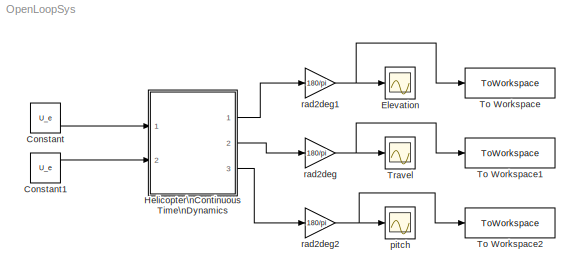
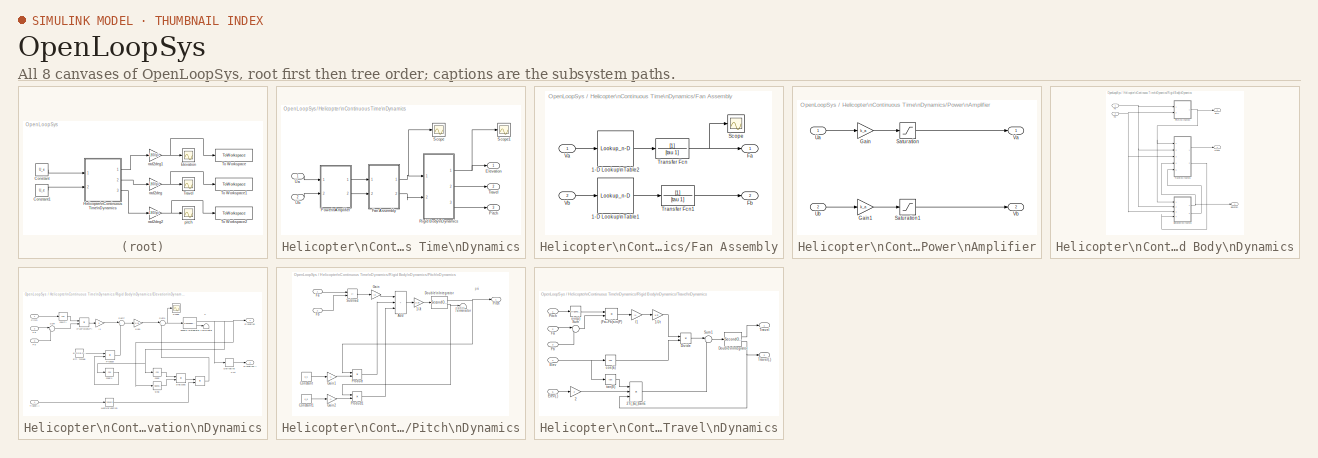
[diagram: thumbnail index - all 8 canvases of the model, root first then tree order]
MODEL OpenLoopSys
KIND model
BLOCK [Constant] Constant
  SID = 283
  SampleTime = 0
  Value = U_e
BLOCK [Constant] Constant1
  SID = 284
  SampleTime = 0
  Value = U_e
BLOCK [Scope] Elevation
  Floating = off
  NumInputPorts = 1
  Ports = [1]
  SID = 1
  ScopeSpecificationString = Simulink.scopes.TimeScopeBlockCfg('CurrentConfiguration', extmgr.ConfigurationSet(extmgr.Configuration('Core','General UI',true),extmgr.Configuration('Core','Source UI',true),extmgr.Configuration('Sources','WiredSimulink',true,'DataLogging',true,'DataLoggingVariableName','elev','DataLoggingSaveFormat','StructureWithTime','DataLoggingDecimation','1','DataLoggingDecimateData',true),extmgr.Configurat...<+1684ch>
BLOCK [SubSystem] Helicopter\nContinuous Time\nDynamics
  Ports = [2, 3]
  RequestExecContextInheritance = off
  SID = 2
BLOCK [Outport] Helicopter\nContinuous Time\nDynamics/Elevation
  NameLocation = top
  SID = 81
BLOCK [SubSystem] Helicopter\nContinuous Time\nDynamics/Fan Assembly
  Ports = [2, 2]
  RequestExecContextInheritance = off
  SID = 5
BLOCK [Lookup_n-D] Helicopter\nContinuous Time\nDynamics/Fan Assembly/1-D Lookup\nTable1
  BreakpointsForDimension1 = V_ab
  InputPortMap = u0
  InternalRulePriority = Speed
  NumberOfTableDimensions = 1
  Ports = [1, 1]
  RndMeth = Simplest
  SID = 295
  Table = Fss_ab
BLOCK [Lookup_n-D] Helicopter\nContinuous Time\nDynamics/Fan Assembly/1-D Lookup\nTable2
  BreakpointsForDimension1 = V_ab
  InputPortMap = u0
  InternalRulePriority = Speed
  NumberOfTableDimensions = 1
  Ports = [1, 1]
  RndMeth = Simplest
  SID = 298
  Table = Fss_ab
BLOCK [Outport] Helicopter\nContinuous Time\nDynamics/Fan Assembly/Fa
  SID = 12
BLOCK [Outport] Helicopter\nContinuous Time\nDynamics/Fan Assembly/Fb
  Port = 2
  SID = 13
BLOCK [Scope] Helicopter\nContinuous Time\nDynamics/Fan Assembly/Scope
  Floating = off
  NumInputPorts = 1
  Ports = [1]
  SID = 310
  ScopeSpecificationString = Simulink.scopes.TimeScopeBlockCfg('CurrentConfiguration', extmgr.ConfigurationSet(extmgr.Configuration('Core','General UI',true),extmgr.Configuration('Core','Source UI',true),extmgr.Configuration('Sources','WiredSimulink',true,'DataLoggingVariableName','ScopeData1'),extmgr.Configuration('Visuals','Time Domain',true,'SerializedDisplays',{struct('MinYLimReal','-0.00044','MaxYLimReal','0.00396','YLab...<+1371ch>
BLOCK [TransferFcn] Helicopter\nContinuous Time\nDynamics/Fan Assembly/Transfer Fcn
  Denominator = [tau 1]
  SID = 307
BLOCK [TransferFcn] Helicopter\nContinuous Time\nDynamics/Fan Assembly/Transfer Fcn1
  Denominator = [tau 1]
  SID = 308
BLOCK [Inport] Helicopter\nContinuous Time\nDynamics/Fan Assembly/Va
  SID = 6
BLOCK [Inport] Helicopter\nContinuous Time\nDynamics/Fan Assembly/Vb
  Port = 2
  SID = 7
BLOCK [Outport] Helicopter\nContinuous Time\nDynamics/Pitch
  Port = 3
  SID = 83
BLOCK [SubSystem] Helicopter\nContinuous Time\nDynamics/Power\nAmplifier
  Ports = [2, 2]
  RequestExecContextInheritance = off
  SID = 14
BLOCK [Gain] Helicopter\nContinuous Time\nDynamics/Power\nAmplifier/Gain
  Gain = k_a
  SID = 246
BLOCK [Gain] Helicopter\nContinuous Time\nDynamics/Power\nAmplifier/Gain1
  Gain = k_a
  SID = 248
BLOCK [Saturate] Helicopter\nContinuous Time\nDynamics/Power\nAmplifier/Saturation
  LowerLimit = amp_sat_l
  SID = 247
  UpperLimit = amp_sat_u
BLOCK [Saturate] Helicopter\nContinuous Time\nDynamics/Power\nAmplifier/Saturation1
  LowerLimit = amp_sat_l
  SID = 249
  UpperLimit = amp_sat_u
BLOCK [Inport] Helicopter\nContinuous Time\nDynamics/Power\nAmplifier/Ua
  SID = 15
BLOCK [Inport] Helicopter\nContinuous Time\nDynamics/Power\nAmplifier/Ub
  Port = 2
  SID = 16
BLOCK [Outport] Helicopter\nContinuous Time\nDynamics/Power\nAmplifier/Va
  SID = 21
BLOCK [Outport] Helicopter\nContinuous Time\nDynamics/Power\nAmplifier/Vb
  Port = 2
  SID = 22
BLOCK [SubSystem] Helicopter\nContinuous Time\nDynamics/Rigid Body\nDynamics
  Ports = [2, 3]
  RequestExecContextInheritance = off
  SID = 178
BLOCK [Outport] Helicopter\nContinuous Time\nDynamics/Rigid Body\nDynamics/Elevation
  NameLocation = top
  SID = 237
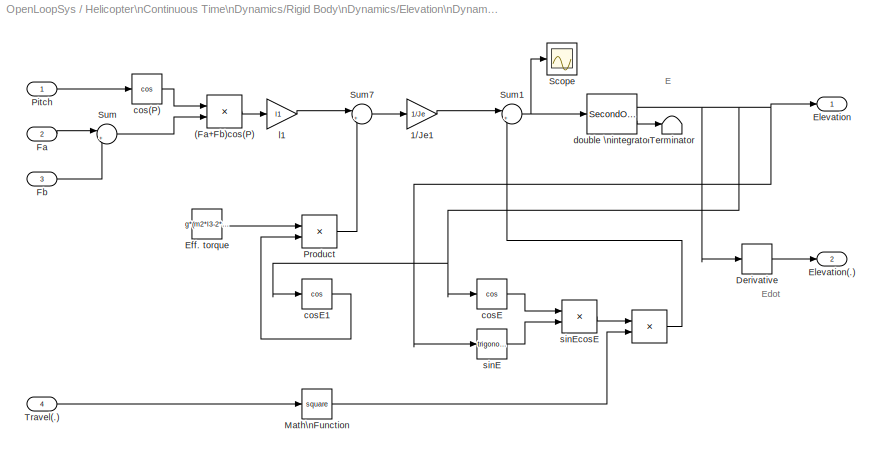
BLOCK [SubSystem] Helicopter\nContinuous Time\nDynamics/Rigid Body\nDynamics/Elevation\nDynamics
  Ports = [4, 2]
  RequestExecContextInheritance = off
  SID = 181
BLOCK [Product] Helicopter\nContinuous Time\nDynamics/Rigid Body\nDynamics/Elevation\nDynamics/ 
  InputSameDT = on
  OutDataTypeStr = Inherit: Same as first input
  Ports = [2, 1]
  RndMeth = Zero
  SID = 186
  SaturateOnIntegerOverflow = on
BLOCK [Product] Helicopter\nContinuous Time\nDynamics/Rigid Body\nDynamics/Elevation\nDynamics/(Fa+Fb)cos(P)
  InputSameDT = on
  OutDataTypeStr = Inherit: Same as first input
  Ports = [2, 1]
  RndMeth = Zero
  SID = 187
  SaturateOnIntegerOverflow = on
BLOCK [Gain] Helicopter\nContinuous Time\nDynamics/Rigid Body\nDynamics/Elevation\nDynamics/1//Je1
  Gain = 1/Je
  OutDataTypeStr = Inherit: Same as input
  ParamDataTypeStr = Inherit: Same as input
  SID = 299
  SaturateOnIntegerOverflow = on
BLOCK [Derivative] Helicopter\nContinuous Time\nDynamics/Rigid Body\nDynamics/Elevation\nDynamics/Derivative
  SID = 189
BLOCK [Constant] Helicopter\nContinuous Time\nDynamics/Rigid Body\nDynamics/Elevation\nDynamics/Eff. torque
  SID = 190
  SampleTime = 0
  Value = g*(m2*l3-2*m1*l1)
BLOCK [Outport] Helicopter\nContinuous Time\nDynamics/Rigid Body\nDynamics/Elevation\nDynamics/Elevation
  SID = 203
BLOCK [Outport] Helicopter\nContinuous Time\nDynamics/Rigid Body\nDynamics/Elevation\nDynamics/Elevation(.)
  Port = 2
  SID = 204
BLOCK [Inport] Helicopter\nContinuous Time\nDynamics/Rigid Body\nDynamics/Elevation\nDynamics/Fa
  Port = 2
  SID = 183
BLOCK [Inport] Helicopter\nContinuous Time\nDynamics/Rigid Body\nDynamics/Elevation\nDynamics/Fb
  Port = 3
  SID = 184
BLOCK [Math] Helicopter\nContinuous Time\nDynamics/Rigid Body\nDynamics/Elevation\nDynamics/Math\nFunction
  Operator = square
  Ports = [1, 1]
  SID = 191
  SignedPower = on
BLOCK [Inport] Helicopter\nContinuous Time\nDynamics/Rigid Body\nDynamics/Elevation\nDynamics/Pitch
  SID = 182
BLOCK [Product] Helicopter\nContinuous Time\nDynamics/Rigid Body\nDynamics/Elevation\nDynamics/Product
  InputSameDT = on
  OutDataTypeStr = Inherit: Same as first input
  Ports = [2, 1]
  RndMeth = Zero
  SID = 192
  SaturateOnIntegerOverflow = on
BLOCK [Scope] Helicopter\nContinuous Time\nDynamics/Rigid Body\nDynamics/Elevation\nDynamics/Scope
  Floating = off
  NumInputPorts = 1
  Ports = [1]
  SID = 302
  ScopeSpecificationString = Simulink.scopes.TimeScopeBlockCfg('CurrentConfiguration', extmgr.ConfigurationSet(extmgr.Configuration('Core','General UI',true),extmgr.Configuration('Core','Source UI',true),extmgr.Configuration('Sources','WiredSimulink',true,'DataLoggingVariableName','ScopeData2'),extmgr.Configuration('Visuals','Time Domain',true,'SerializedDisplays',{struct('MinYLimReal','-0.8852','MaxYLimReal','-0.21737','YLab...<+1390ch>
BLOCK [Sum] Helicopter\nContinuous Time\nDynamics/Rigid Body\nDynamics/Elevation\nDynamics/Sum
  InputSameDT = on
  Inputs = |++
  OutDataTypeStr = Inherit: Same as first input
  Ports = [2, 1]
  SID = 193
  SaturateOnIntegerOverflow = on
BLOCK [Sum] Helicopter\nContinuous Time\nDynamics/Rigid Body\nDynamics/Elevation\nDynamics/Sum1
  InputSameDT = on
  Inputs = |+-
  OutDataTypeStr = Inherit: Same as first input
  Ports = [2, 1]
  SID = 194
  SaturateOnIntegerOverflow = on
BLOCK [Sum] Helicopter\nContinuous Time\nDynamics/Rigid Body\nDynamics/Elevation\nDynamics/Sum7
  InputSameDT = on
  Inputs = |++
  OutDataTypeStr = Inherit: Same as first input
  Ports = [2, 1]
  SID = 195
  SaturateOnIntegerOverflow = on
BLOCK [Terminator] Helicopter\nContinuous Time\nDynamics/Rigid Body\nDynamics/Elevation\nDynamics/Terminator
  SID = 196
BLOCK [Inport] Helicopter\nContinuous Time\nDynamics/Rigid Body\nDynamics/Elevation\nDynamics/Travel(.)
  Port = 4
  SID = 185
BLOCK [Trigonometry] Helicopter\nContinuous Time\nDynamics/Rigid Body\nDynamics/Elevation\nDynamics/cos(P)
  Operator = cos
  Ports = [1, 1]
  SID = 197
BLOCK [Trigonometry] Helicopter\nContinuous Time\nDynamics/Rigid Body\nDynamics/Elevation\nDynamics/cosE
  Operator = cos
  Ports = [1, 1]
  SID = 198
BLOCK [Trigonometry] Helicopter\nContinuous Time\nDynamics/Rigid Body\nDynamics/Elevation\nDynamics/cosE1
  Operator = cos
  Ports = [1, 1]
  SID = 282
BLOCK [SecondOrderIntegrator] Helicopter\nContinuous Time\nDynamics/Rigid Body\nDynamics/Elevation\nDynamics/double \nintegrator
  ICX = e_lim_l
  LimitDXDT = on
  LimitX = on
  LowerLimitDXDT = -2*pi
  LowerLimitX = e_lim_l
  Ports = [1, 2]
  SID = 199
  UpperLimitDXDT = 2*pi
  UpperLimitX = e_lim_u
BLOCK [Gain] Helicopter\nContinuous Time\nDynamics/Rigid Body\nDynamics/Elevation\nDynamics/l1
  Gain = l1
  OutDataTypeStr = Inherit: Same as input
  ParamDataTypeStr = Inherit: Same as input
  SID = 200
  SaturateOnIntegerOverflow = on
BLOCK [Trigonometry] Helicopter\nContinuous Time\nDynamics/Rigid Body\nDynamics/Elevation\nDynamics/sinE
  Ports = [1, 1]
  SID = 201
BLOCK [Product] Helicopter\nContinuous Time\nDynamics/Rigid Body\nDynamics/Elevation\nDynamics/sinEcosE
  InputSameDT = on
  OutDataTypeStr = Inherit: Same as first input
  Ports = [2, 1]
  RndMeth = Zero
  SID = 202
  SaturateOnIntegerOverflow = on
BLOCK [Inport] Helicopter\nContinuous Time\nDynamics/Rigid Body\nDynamics/Fa
  SID = 179
BLOCK [Inport] Helicopter\nContinuous Time\nDynamics/Rigid Body\nDynamics/Fb
  Port = 2
  SID = 180
BLOCK [Outport] Helicopter\nContinuous Time\nDynamics/Rigid Body\nDynamics/Pitch
  Port = 3
  SID = 239
BLOCK [SubSystem] Helicopter\nContinuous Time\nDynamics/Rigid Body\nDynamics/Pitch\nDynamics
  Ports = [2, 1]
  RequestExecContextInheritance = off
  SID = 261
BLOCK [Gain] Helicopter\nContinuous Time\nDynamics/Rigid Body\nDynamics/Pitch\nDynamics/1//Jt
  Gain = 1/Jp
  OutDataTypeStr = Inherit: Same as input
  ParamDataTypeStr = Inherit: Same as input
  SID = 305
  SaturateOnIntegerOverflow = on
BLOCK [Sum] Helicopter\nContinuous Time\nDynamics/Rigid Body\nDynamics/Pitch\nDynamics/Add
  IconShape = rectangular
  Inputs = +++
  Ports = [3, 1]
  SID = 264
BLOCK [Constant] Helicopter\nContinuous Time\nDynamics/Rigid Body\nDynamics/Pitch\nDynamics/Constant
  SID = 265
  SampleTime = 0
  Value = k_s
BLOCK [Constant] Helicopter\nContinuous Time\nDynamics/Rigid Body\nDynamics/Pitch\nDynamics/Constant1
  SID = 266
  SampleTime = 0
  Value = k_d
BLOCK [SecondOrderIntegrator] Helicopter\nContinuous Time\nDynamics/Rigid Body\nDynamics/Pitch\nDynamics/Double\nIntegrator
  ICX = 0
  LimitX = on
  LowerLimitX = p_lim_l
  Ports = [1, 2]
  SID = 267
  UpperLimitX = p_lim_u
BLOCK [Inport] Helicopter\nContinuous Time\nDynamics/Rigid Body\nDynamics/Pitch\nDynamics/Fa
  SID = 262
BLOCK [Inport] Helicopter\nContinuous Time\nDynamics/Rigid Body\nDynamics/Pitch\nDynamics/Fb
  Port = 2
  SID = 263
BLOCK [Gain] Helicopter\nContinuous Time\nDynamics/Rigid Body\nDynamics/Pitch\nDynamics/Gain
  Gain = l2
  SID = 268
BLOCK [Gain] Helicopter\nContinuous Time\nDynamics/Rigid Body\nDynamics/Pitch\nDynamics/Gain1
  Gain = -1
  SID = 269
BLOCK [Gain] Helicopter\nContinuous Time\nDynamics/Rigid Body\nDynamics/Pitch\nDynamics/Gain2
  Gain = -1
  SID = 270
BLOCK [Outport] Helicopter\nContinuous Time\nDynamics/Rigid Body\nDynamics/Pitch\nDynamics/Pitch
  SID = 275
BLOCK [Product] Helicopter\nContinuous Time\nDynamics/Rigid Body\nDynamics/Pitch\nDynamics/Product
  Ports = [2, 1]
  SID = 271
BLOCK [Product] Helicopter\nContinuous Time\nDynamics/Rigid Body\nDynamics/Pitch\nDynamics/Product1
  Ports = [2, 1]
  SID = 272
BLOCK [Sum] Helicopter\nContinuous Time\nDynamics/Rigid Body\nDynamics/Pitch\nDynamics/Subtract
  IconShape = rectangular
  Inputs = +-
  Ports = [2, 1]
  SID = 273
BLOCK [Terminator] Helicopter\nContinuous Time\nDynamics/Rigid Body\nDynamics/Pitch\nDynamics/Terminator
  SID = 274
BLOCK [Outport] Helicopter\nContinuous Time\nDynamics/Rigid Body\nDynamics/Travel
  Port = 2
  SID = 238
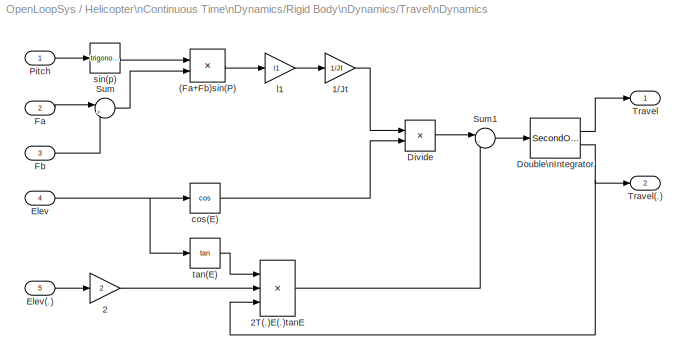
BLOCK [SubSystem] Helicopter\nContinuous Time\nDynamics/Rigid Body\nDynamics/Travel\nDynamics
  Ports = [5, 2]
  RequestExecContextInheritance = off
  SID = 217
BLOCK [Product] Helicopter\nContinuous Time\nDynamics/Rigid Body\nDynamics/Travel\nDynamics/(Fa+Fb)sin(P)
  InputSameDT = on
  OutDataTypeStr = Inherit: Same as first input
  Ports = [2, 1]
  RndMeth = Zero
  SID = 223
  SaturateOnIntegerOverflow = on
BLOCK [Gain] Helicopter\nContinuous Time\nDynamics/Rigid Body\nDynamics/Travel\nDynamics/1//Jt
  Gain = 1/Jt
  OutDataTypeStr = Inherit: Same as input
  ParamDataTypeStr = Inherit: Same as input
  SID = 224
  SaturateOnIntegerOverflow = on
BLOCK [Gain] Helicopter\nContinuous Time\nDynamics/Rigid Body\nDynamics/Travel\nDynamics/2
  Gain = 2
  OutDataTypeStr = Inherit: Same as input
  ParamDataTypeStr = Inherit: Same as input
  SID = 225
  SaturateOnIntegerOverflow = on
BLOCK [Product] Helicopter\nContinuous Time\nDynamics/Rigid Body\nDynamics/Travel\nDynamics/2T(.)E(.)tanE
  InputSameDT = on
  Inputs = 3
  OutDataTypeStr = Inherit: Same as first input
  Ports = [3, 1]
  RndMeth = Zero
  SID = 226
  SaturateOnIntegerOverflow = on
BLOCK [Product] Helicopter\nContinuous Time\nDynamics/Rigid Body\nDynamics/Travel\nDynamics/Divide
  Inputs = */
  Ports = [2, 1]
  SID = 227
BLOCK [SecondOrderIntegrator] Helicopter\nContinuous Time\nDynamics/Rigid Body\nDynamics/Travel\nDynamics/Double\nIntegrator
  LimitDXDT = on
  LowerLimitDXDT = -2
  LowerLimitX = 0
  Ports = [1, 2]
  SID = 228
  UpperLimitDXDT = 2
  UpperLimitX = 1
BLOCK [Inport] Helicopter\nContinuous Time\nDynamics/Rigid Body\nDynamics/Travel\nDynamics/Elev
  Port = 4
  SID = 221
BLOCK [Inport] Helicopter\nContinuous Time\nDynamics/Rigid Body\nDynamics/Travel\nDynamics/Elev(.)
  Port = 5
  SID = 222
BLOCK [Inport] Helicopter\nContinuous Time\nDynamics/Rigid Body\nDynamics/Travel\nDynamics/Fa
  Port = 2
  SID = 219
BLOCK [Inport] Helicopter\nContinuous Time\nDynamics/Rigid Body\nDynamics/Travel\nDynamics/Fb
  Port = 3
  SID = 220
BLOCK [Inport] Helicopter\nContinuous Time\nDynamics/Rigid Body\nDynamics/Travel\nDynamics/Pitch
  SID = 218
BLOCK [Sum] Helicopter\nContinuous Time\nDynamics/Rigid Body\nDynamics/Travel\nDynamics/Sum
  InputSameDT = on
  Inputs = |++
  OutDataTypeStr = Inherit: Same as first input
  Ports = [2, 1]
  SID = 229
  SaturateOnIntegerOverflow = on
BLOCK [Sum] Helicopter\nContinuous Time\nDynamics/Rigid Body\nDynamics/Travel\nDynamics/Sum1
  InputSameDT = on
  Inputs = |-+
  OutDataTypeStr = Inherit: Same as first input
  Ports = [2, 1]
  SID = 230
  SaturateOnIntegerOverflow = on
BLOCK [Outport] Helicopter\nContinuous Time\nDynamics/Rigid Body\nDynamics/Travel\nDynamics/Travel
  SID = 235
BLOCK [Outport] Helicopter\nContinuous Time\nDynamics/Rigid Body\nDynamics/Travel\nDynamics/Travel(.)
  Port = 2
  SID = 236
BLOCK [Trigonometry] Helicopter\nContinuous Time\nDynamics/Rigid Body\nDynamics/Travel\nDynamics/cos(E)
  Operator = cos
  Ports = [1, 1]
  SID = 231
BLOCK [Gain] Helicopter\nContinuous Time\nDynamics/Rigid Body\nDynamics/Travel\nDynamics/l1
  Gain = l1
  OutDataTypeStr = Inherit: Same as input
  ParamDataTypeStr = Inherit: Same as input
  SID = 232
  SaturateOnIntegerOverflow = on
BLOCK [Trigonometry] Helicopter\nContinuous Time\nDynamics/Rigid Body\nDynamics/Travel\nDynamics/sin(p)
  Ports = [1, 1]
  SID = 233
BLOCK [Trigonometry] Helicopter\nContinuous Time\nDynamics/Rigid Body\nDynamics/Travel\nDynamics/tan(E)
  Operator = tan
  Ports = [1, 1]
  SID = 234
BLOCK [Scope] Helicopter\nContinuous Time\nDynamics/Scope
  Floating = off
  NumInputPorts = 1
  Ports = [1]
  SID = 297
  ScopeSpecificationString = Simulink.scopes.TimeScopeBlockCfg('CurrentConfiguration', extmgr.ConfigurationSet(extmgr.Configuration('Core','General UI',true),extmgr.Configuration('Core','Source UI',true),extmgr.Configuration('Sources','WiredSimulink',true,'DataLoggingVariableName','ScopeData1'),extmgr.Configuration('Visuals','Time Domain',true,'SerializedDisplays',{struct('MinYLimReal','-0.00797','MaxYLimReal','0.07177','YLab...<+1373ch>
BLOCK [Scope] Helicopter\nContinuous Time\nDynamics/Scope1
  Floating = off
  NumInputPorts = 1
  Ports = [1]
  SID = 309
  ScopeSpecificationString = Simulink.scopes.TimeScopeBlockCfg('CurrentConfiguration', extmgr.ConfigurationSet(extmgr.Configuration('Core','General UI',true),extmgr.Configuration('Core','Source UI',true),extmgr.Configuration('Sources','WiredSimulink',true,'DataLoggingVariableName','ScopeData1'),extmgr.Configuration('Visuals','Time Domain',true,'SerializedDisplays',{struct('MinYLimReal','-1.09083','MaxYLimReal','1.09083','YLab...<+1380ch>
BLOCK [Outport] Helicopter\nContinuous Time\nDynamics/Travel
  Port = 2
  SID = 82
BLOCK [Inport] Helicopter\nContinuous Time\nDynamics/Ua
  SID = 3
BLOCK [Inport] Helicopter\nContinuous Time\nDynamics/Ub
  Port = 2
  SID = 4
BLOCK [ToWorkspace] To Workspace
  FixptAsFi = on
  MaxDataPoints = inf
  Ports = [1]
  SID = 285
  SampleTime = -1
  SaveFormat = Timeseries
  VariableName = Elev
BLOCK [ToWorkspace] To Workspace1
  FixptAsFi = on
  MaxDataPoints = inf
  Ports = [1]
  SID = 286
  SampleTime = -1
  SaveFormat = Timeseries
  VariableName = Trav
BLOCK [ToWorkspace] To Workspace2
  FixptAsFi = on
  MaxDataPoints = inf
  Ports = [1]
  SID = 287
  SampleTime = -1
  SaveFormat = Timeseries
  VariableName = Pitch
BLOCK [Scope] Travel
  Floating = off
  NumInputPorts = 1
  Ports = [1]
  SID = 84
  ScopeSpecificationString = Simulink.scopes.TimeScopeBlockCfg('CurrentConfiguration', extmgr.ConfigurationSet(extmgr.Configuration('Core','General UI',true),extmgr.Configuration('Core','Source UI',true),extmgr.Configuration('Sources','WiredSimulink',true,'DataLogging',true,'DataLoggingVariableName','trav','DataLoggingSaveFormat','StructureWithTime','DataLoggingDecimation','1','DataLoggingDecimateData',true),extmgr.Configurat...<+1686ch>
BLOCK [Scope] pitch
  Floating = off
  NumInputPorts = 1
  Ports = [1]
  SID = 85
  ScopeSpecificationString = Simulink.scopes.TimeScopeBlockCfg('CurrentConfiguration', extmgr.ConfigurationSet(extmgr.Configuration('Core','General UI',true),extmgr.Configuration('Core','Source UI',true),extmgr.Configuration('Sources','WiredSimulink',true,'DataLogging',true,'DataLoggingVariableName','pitch','DataLoggingSaveFormat','StructureWithTime','DataLoggingDecimation','1','DataLoggingDecimateData',true),extmgr.Configura...<+1684ch>
BLOCK [Gain] rad2deg
  Gain = 180/pi
  OutDataTypeStr = Inherit: Same as input
  ParamDataTypeStr = Inherit: Same as input
  SID = 86
  SaturateOnIntegerOverflow = on
BLOCK [Gain] rad2deg1
  Gain = 180/pi
  OutDataTypeStr = Inherit: Same as input
  ParamDataTypeStr = Inherit: Same as input
  SID = 87
  SaturateOnIntegerOverflow = on
BLOCK [Gain] rad2deg2
  Gain = 180/pi
  OutDataTypeStr = Inherit: Same as input
  ParamDataTypeStr = Inherit: Same as input
  SID = 88
  SaturateOnIntegerOverflow = on
ANNOTATION Helicopter\nContinuous Time\nDynamics/Rigid Body\nDynamics/Elevation\nDynamics: E
ANNOTATION Helicopter\nContinuous Time\nDynamics/Rigid Body\nDynamics/Elevation\nDynamics: Edot
ANNOTATION Helicopter\nContinuous Time\nDynamics/Rigid Body\nDynamics/Pitch\nDynamics: psi
ANNOTATION Helicopter\nContinuous Time\nDynamics/Rigid Body\nDynamics/Pitch\nDynamics: psidot
LINE Constant1:1 -> Helicopter\nContinuous Time\nDynamics:2
LINE Constant:1 -> Helicopter\nContinuous Time\nDynamics:1
LINE Helicopter\nContinuous Time\nDynamics/Fan Assembly/1-D Lookup\nTable1:1 -> Helicopter\nContinuous Time\nDynamics/Fan Assembly/Transfer Fcn1:1
LINE Helicopter\nContinuous Time\nDynamics/Fan Assembly/1-D Lookup\nTable2:1 -> Helicopter\nContinuous Time\nDynamics/Fan Assembly/Transfer Fcn:1
LINE Helicopter\nContinuous Time\nDynamics/Fan Assembly/Transfer Fcn1:1 -> Helicopter\nContinuous Time\nDynamics/Fan Assembly/Fb:1
NET Helicopter\nContinuous Time\nDynamics/Fan Assembly/Transfer Fcn:1 -> Helicopter\nContinuous Time\nDynamics/Fan Assembly/Fa:1, Helicopter\nContinuous Time\nDynamics/Fan Assembly/Scope:1
LINE Helicopter\nContinuous Time\nDynamics/Fan Assembly/Va:1 -> Helicopter\nContinuous Time\nDynamics/Fan Assembly/1-D Lookup\nTable2:1
LINE Helicopter\nContinuous Time\nDynamics/Fan Assembly/Vb:1 -> Helicopter\nContinuous Time\nDynamics/Fan Assembly/1-D Lookup\nTable1:1
NET Helicopter\nContinuous Time\nDynamics/Fan Assembly:1 -> Helicopter\nContinuous Time\nDynamics/Rigid Body\nDynamics:1, Helicopter\nContinuous Time\nDynamics/Scope:1
LINE Helicopter\nContinuous Time\nDynamics/Fan Assembly:2 -> Helicopter\nContinuous Time\nDynamics/Rigid Body\nDynamics:2
LINE Helicopter\nContinuous Time\nDynamics/Power\nAmplifier/Gain1:1 -> Helicopter\nContinuous Time\nDynamics/Power\nAmplifier/Saturation1:1
LINE Helicopter\nContinuous Time\nDynamics/Power\nAmplifier/Gain:1 -> Helicopter\nContinuous Time\nDynamics/Power\nAmplifier/Saturation:1
LINE Helicopter\nContinuous Time\nDynamics/Power\nAmplifier/Saturation1:1 -> Helicopter\nContinuous Time\nDynamics/Power\nAmplifier/Vb:1
LINE Helicopter\nContinuous Time\nDynamics/Power\nAmplifier/Saturation:1 -> Helicopter\nContinuous Time\nDynamics/Power\nAmplifier/Va:1
LINE Helicopter\nContinuous Time\nDynamics/Power\nAmplifier/Ua:1 -> Helicopter\nContinuous Time\nDynamics/Power\nAmplifier/Gain:1
LINE Helicopter\nContinuous Time\nDynamics/Power\nAmplifier/Ub:1 -> Helicopter\nContinuous Time\nDynamics/Power\nAmplifier/Gain1:1
LINE Helicopter\nContinuous Time\nDynamics/Power\nAmplifier:1 -> Helicopter\nContinuous Time\nDynamics/Fan Assembly:1
LINE Helicopter\nContinuous Time\nDynamics/Power\nAmplifier:2 -> Helicopter\nContinuous Time\nDynamics/Fan Assembly:2
LINE Helicopter\nContinuous Time\nDynamics/Rigid Body\nDynamics/Elevation\nDynamics/ :1 -> Helicopter\nContinuous Time\nDynamics/Rigid Body\nDynamics/Elevation\nDynamics/Sum1:2
LINE Helicopter\nContinuous Time\nDynamics/Rigid Body\nDynamics/Elevation\nDynamics/(Fa+Fb)cos(P):1 -> Helicopter\nContinuous Time\nDynamics/Rigid Body\nDynamics/Elevation\nDynamics/l1:1
LINE Helicopter\nContinuous Time\nDynamics/Rigid Body\nDynamics/Elevation\nDynamics/1//Je1:1 -> Helicopter\nContinuous Time\nDynamics/Rigid Body\nDynamics/Elevation\nDynamics/Sum1:1
LINE Helicopter\nContinuous Time\nDynamics/Rigid Body\nDynamics/Elevation\nDynamics/Derivative:1 -> Helicopter\nContinuous Time\nDynamics/Rigid Body\nDynamics/Elevation\nDynamics/Elevation(.):1
LINE Helicopter\nContinuous Time\nDynamics/Rigid Body\nDynamics/Elevation\nDynamics/Eff. torque:1 -> Helicopter\nContinuous Time\nDynamics/Rigid Body\nDynamics/Elevation\nDynamics/Product:1
LINE Helicopter\nContinuous Time\nDynamics/Rigid Body\nDynamics/Elevation\nDynamics/Fa:1 -> Helicopter\nContinuous Time\nDynamics/Rigid Body\nDynamics/Elevation\nDynamics/Sum:1
LINE Helicopter\nContinuous Time\nDynamics/Rigid Body\nDynamics/Elevation\nDynamics/Fb:1 -> Helicopter\nContinuous Time\nDynamics/Rigid Body\nDynamics/Elevation\nDynamics/Sum:2
LINE Helicopter\nContinuous Time\nDynamics/Rigid Body\nDynamics/Elevation\nDynamics/Math\nFunction:1 -> Helicopter\nContinuous Time\nDynamics/Rigid Body\nDynamics/Elevation\nDynamics/ :2
LINE Helicopter\nContinuous Time\nDynamics/Rigid Body\nDynamics/Elevation\nDynamics/Pitch:1 -> Helicopter\nContinuous Time\nDynamics/Rigid Body\nDynamics/Elevation\nDynamics/cos(P):1
LINE Helicopter\nContinuous Time\nDynamics/Rigid Body\nDynamics/Elevation\nDynamics/Product:1 -> Helicopter\nContinuous Time\nDynamics/Rigid Body\nDynamics/Elevation\nDynamics/Sum7:2
NET Helicopter\nContinuous Time\nDynamics/Rigid Body\nDynamics/Elevation\nDynamics/Sum1:1 -> Helicopter\nContinuous Time\nDynamics/Rigid Body\nDynamics/Elevation\nDynamics/Scope:1, Helicopter\nContinuous Time\nDynamics/Rigid Body\nDynamics/Elevation\nDynamics/double \nintegrator:1
LINE Helicopter\nContinuous Time\nDynamics/Rigid Body\nDynamics/Elevation\nDynamics/Sum7:1 -> Helicopter\nContinuous Time\nDynamics/Rigid Body\nDynamics/Elevation\nDynamics/1//Je1:1
LINE Helicopter\nContinuous Time\nDynamics/Rigid Body\nDynamics/Elevation\nDynamics/Sum:1 -> Helicopter\nContinuous Time\nDynamics/Rigid Body\nDynamics/Elevation\nDynamics/(Fa+Fb)cos(P):2
LINE Helicopter\nContinuous Time\nDynamics/Rigid Body\nDynamics/Elevation\nDynamics/Travel(.):1 -> Helicopter\nContinuous Time\nDynamics/Rigid Body\nDynamics/Elevation\nDynamics/Math\nFunction:1
LINE Helicopter\nContinuous Time\nDynamics/Rigid Body\nDynamics/Elevation\nDynamics/cos(P):1 -> Helicopter\nContinuous Time\nDynamics/Rigid Body\nDynamics/Elevation\nDynamics/(Fa+Fb)cos(P):1
LINE Helicopter\nContinuous Time\nDynamics/Rigid Body\nDynamics/Elevation\nDynamics/cosE1:1 -> Helicopter\nContinuous Time\nDynamics/Rigid Body\nDynamics/Elevation\nDynamics/Product:2
LINE Helicopter\nContinuous Time\nDynamics/Rigid Body\nDynamics/Elevation\nDynamics/cosE:1 -> Helicopter\nContinuous Time\nDynamics/Rigid Body\nDynamics/Elevation\nDynamics/sinEcosE:1
NET Helicopter\nContinuous Time\nDynamics/Rigid Body\nDynamics/Elevation\nDynamics/double \nintegrator:1 -> Helicopter\nContinuous Time\nDynamics/Rigid Body\nDynamics/Elevation\nDynamics/Derivative:1, Helicopter\nContinuous Time\nDynamics/Rigid Body\nDynamics/Elevation\nDynamics/Elevation:1, Helicopter\nContinuous Time\nDynamics/Rigid Body\nDynamics/Elevation\nDynamics/cosE1:1, Helicopter\nContinuous Time\nDynamics/Rigid Body\nDynamics/Elevation\nDynamics/cosE:1, Helicopter\nContinuous Time\nDynamics/Rigid Body\nDynamics/Elevation\nDynamics/sinE:1
LINE Helicopter\nContinuous Time\nDynamics/Rigid Body\nDynamics/Elevation\nDynamics/double \nintegrator:2 -> Helicopter\nContinuous Time\nDynamics/Rigid Body\nDynamics/Elevation\nDynamics/Terminator:1
LINE Helicopter\nContinuous Time\nDynamics/Rigid Body\nDynamics/Elevation\nDynamics/l1:1 -> Helicopter\nContinuous Time\nDynamics/Rigid Body\nDynamics/Elevation\nDynamics/Sum7:1
LINE Helicopter\nContinuous Time\nDynamics/Rigid Body\nDynamics/Elevation\nDynamics/sinE:1 -> Helicopter\nContinuous Time\nDynamics/Rigid Body\nDynamics/Elevation\nDynamics/sinEcosE:2
LINE Helicopter\nContinuous Time\nDynamics/Rigid Body\nDynamics/Elevation\nDynamics/sinEcosE:1 -> Helicopter\nContinuous Time\nDynamics/Rigid Body\nDynamics/Elevation\nDynamics/ :1
NET Helicopter\nContinuous Time\nDynamics/Rigid Body\nDynamics/Elevation\nDynamics:1 -> Helicopter\nContinuous Time\nDynamics/Rigid Body\nDynamics/Elevation:1, Helicopter\nContinuous Time\nDynamics/Rigid Body\nDynamics/Travel\nDynamics:4
LINE Helicopter\nContinuous Time\nDynamics/Rigid Body\nDynamics/Elevation\nDynamics:2 -> Helicopter\nContinuous Time\nDynamics/Rigid Body\nDynamics/Travel\nDynamics:5
NET Helicopter\nContinuous Time\nDynamics/Rigid Body\nDynamics/Fa:1 -> Helicopter\nContinuous Time\nDynamics/Rigid Body\nDynamics/Elevation\nDynamics:2, Helicopter\nContinuous Time\nDynamics/Rigid Body\nDynamics/Pitch\nDynamics:1, Helicopter\nContinuous Time\nDynamics/Rigid Body\nDynamics/Travel\nDynamics:2
NET Helicopter\nContinuous Time\nDynamics/Rigid Body\nDynamics/Fb:1 -> Helicopter\nContinuous Time\nDynamics/Rigid Body\nDynamics/Elevation\nDynamics:3, Helicopter\nContinuous Time\nDynamics/Rigid Body\nDynamics/Pitch\nDynamics:2, Helicopter\nContinuous Time\nDynamics/Rigid Body\nDynamics/Travel\nDynamics:3
LINE Helicopter\nContinuous Time\nDynamics/Rigid Body\nDynamics/Pitch\nDynamics/1//Jt:1 -> Helicopter\nContinuous Time\nDynamics/Rigid Body\nDynamics/Pitch\nDynamics/Double\nIntegrator:1
LINE Helicopter\nContinuous Time\nDynamics/Rigid Body\nDynamics/Pitch\nDynamics/Add:1 -> Helicopter\nContinuous Time\nDynamics/Rigid Body\nDynamics/Pitch\nDynamics/1//Jt:1
LINE Helicopter\nContinuous Time\nDynamics/Rigid Body\nDynamics/Pitch\nDynamics/Constant1:1 -> Helicopter\nContinuous Time\nDynamics/Rigid Body\nDynamics/Pitch\nDynamics/Gain2:1
LINE Helicopter\nContinuous Time\nDynamics/Rigid Body\nDynamics/Pitch\nDynamics/Constant:1 -> Helicopter\nContinuous Time\nDynamics/Rigid Body\nDynamics/Pitch\nDynamics/Gain1:1
NET Helicopter\nContinuous Time\nDynamics/Rigid Body\nDynamics/Pitch\nDynamics/Double\nIntegrator:1 -> Helicopter\nContinuous Time\nDynamics/Rigid Body\nDynamics/Pitch\nDynamics/Pitch:1, Helicopter\nContinuous Time\nDynamics/Rigid Body\nDynamics/Pitch\nDynamics/Product:1
NET Helicopter\nContinuous Time\nDynamics/Rigid Body\nDynamics/Pitch\nDynamics/Double\nIntegrator:2 -> Helicopter\nContinuous Time\nDynamics/Rigid Body\nDynamics/Pitch\nDynamics/Product1:1, Helicopter\nContinuous Time\nDynamics/Rigid Body\nDynamics/Pitch\nDynamics/Terminator:1
LINE Helicopter\nContinuous Time\nDynamics/Rigid Body\nDynamics/Pitch\nDynamics/Fa:1 -> Helicopter\nContinuous Time\nDynamics/Rigid Body\nDynamics/Pitch\nDynamics/Subtract:1
LINE Helicopter\nContinuous Time\nDynamics/Rigid Body\nDynamics/Pitch\nDynamics/Fb:1 -> Helicopter\nContinuous Time\nDynamics/Rigid Body\nDynamics/Pitch\nDynamics/Subtract:2
LINE Helicopter\nContinuous Time\nDynamics/Rigid Body\nDynamics/Pitch\nDynamics/Gain1:1 -> Helicopter\nContinuous Time\nDynamics/Rigid Body\nDynamics/Pitch\nDynamics/Product:2
LINE Helicopter\nContinuous Time\nDynamics/Rigid Body\nDynamics/Pitch\nDynamics/Gain2:1 -> Helicopter\nContinuous Time\nDynamics/Rigid Body\nDynamics/Pitch\nDynamics/Product1:2
LINE Helicopter\nContinuous Time\nDynamics/Rigid Body\nDynamics/Pitch\nDynamics/Gain:1 -> Helicopter\nContinuous Time\nDynamics/Rigid Body\nDynamics/Pitch\nDynamics/Add:1
LINE Helicopter\nContinuous Time\nDynamics/Rigid Body\nDynamics/Pitch\nDynamics/Product1:1 -> Helicopter\nContinuous Time\nDynamics/Rigid Body\nDynamics/Pitch\nDynamics/Add:3
LINE Helicopter\nContinuous Time\nDynamics/Rigid Body\nDynamics/Pitch\nDynamics/Product:1 -> Helicopter\nContinuous Time\nDynamics/Rigid Body\nDynamics/Pitch\nDynamics/Add:2
LINE Helicopter\nContinuous Time\nDynamics/Rigid Body\nDynamics/Pitch\nDynamics/Subtract:1 -> Helicopter\nContinuous Time\nDynamics/Rigid Body\nDynamics/Pitch\nDynamics/Gain:1
NET Helicopter\nContinuous Time\nDynamics/Rigid Body\nDynamics/Pitch\nDynamics:1 -> Helicopter\nContinuous Time\nDynamics/Rigid Body\nDynamics/Elevation\nDynamics:1, Helicopter\nContinuous Time\nDynamics/Rigid Body\nDynamics/Pitch:1, Helicopter\nContinuous Time\nDynamics/Rigid Body\nDynamics/Travel\nDynamics:1
LINE Helicopter\nContinuous Time\nDynamics/Rigid Body\nDynamics/Travel\nDynamics/(Fa+Fb)sin(P):1 -> Helicopter\nContinuous Time\nDynamics/Rigid Body\nDynamics/Travel\nDynamics/l1:1
LINE Helicopter\nContinuous Time\nDynamics/Rigid Body\nDynamics/Travel\nDynamics/1//Jt:1 -> Helicopter\nContinuous Time\nDynamics/Rigid Body\nDynamics/Travel\nDynamics/Divide:1
LINE Helicopter\nContinuous Time\nDynamics/Rigid Body\nDynamics/Travel\nDynamics/2:1 -> Helicopter\nContinuous Time\nDynamics/Rigid Body\nDynamics/Travel\nDynamics/2T(.)E(.)tanE:2
LINE Helicopter\nContinuous Time\nDynamics/Rigid Body\nDynamics/Travel\nDynamics/2T(.)E(.)tanE:1 -> Helicopter\nContinuous Time\nDynamics/Rigid Body\nDynamics/Travel\nDynamics/Sum1:2
LINE Helicopter\nContinuous Time\nDynamics/Rigid Body\nDynamics/Travel\nDynamics/Divide:1 -> Helicopter\nContinuous Time\nDynamics/Rigid Body\nDynamics/Travel\nDynamics/Sum1:1
LINE Helicopter\nContinuous Time\nDynamics/Rigid Body\nDynamics/Travel\nDynamics/Double\nIntegrator:1 -> Helicopter\nContinuous Time\nDynamics/Rigid Body\nDynamics/Travel\nDynamics/Travel:1
NET Helicopter\nContinuous Time\nDynamics/Rigid Body\nDynamics/Travel\nDynamics/Double\nIntegrator:2 -> Helicopter\nContinuous Time\nDynamics/Rigid Body\nDynamics/Travel\nDynamics/2T(.)E(.)tanE:3, Helicopter\nContinuous Time\nDynamics/Rigid Body\nDynamics/Travel\nDynamics/Travel(.):1
LINE Helicopter\nContinuous Time\nDynamics/Rigid Body\nDynamics/Travel\nDynamics/Elev(.):1 -> Helicopter\nContinuous Time\nDynamics/Rigid Body\nDynamics/Travel\nDynamics/2:1
NET Helicopter\nContinuous Time\nDynamics/Rigid Body\nDynamics/Travel\nDynamics/Elev:1 -> Helicopter\nContinuous Time\nDynamics/Rigid Body\nDynamics/Travel\nDynamics/cos(E):1, Helicopter\nContinuous Time\nDynamics/Rigid Body\nDynamics/Travel\nDynamics/tan(E):1
LINE Helicopter\nContinuous Time\nDynamics/Rigid Body\nDynamics/Travel\nDynamics/Fa:1 -> Helicopter\nContinuous Time\nDynamics/Rigid Body\nDynamics/Travel\nDynamics/Sum:1
LINE Helicopter\nContinuous Time\nDynamics/Rigid Body\nDynamics/Travel\nDynamics/Fb:1 -> Helicopter\nContinuous Time\nDynamics/Rigid Body\nDynamics/Travel\nDynamics/Sum:2
LINE Helicopter\nContinuous Time\nDynamics/Rigid Body\nDynamics/Travel\nDynamics/Pitch:1 -> Helicopter\nContinuous Time\nDynamics/Rigid Body\nDynamics/Travel\nDynamics/sin(p):1
LINE Helicopter\nContinuous Time\nDynamics/Rigid Body\nDynamics/Travel\nDynamics/Sum1:1 -> Helicopter\nContinuous Time\nDynamics/Rigid Body\nDynamics/Travel\nDynamics/Double\nIntegrator:1
LINE Helicopter\nContinuous Time\nDynamics/Rigid Body\nDynamics/Travel\nDynamics/Sum:1 -> Helicopter\nContinuous Time\nDynamics/Rigid Body\nDynamics/Travel\nDynamics/(Fa+Fb)sin(P):2
LINE Helicopter\nContinuous Time\nDynamics/Rigid Body\nDynamics/Travel\nDynamics/cos(E):1 -> Helicopter\nContinuous Time\nDynamics/Rigid Body\nDynamics/Travel\nDynamics/Divide:2
LINE Helicopter\nContinuous Time\nDynamics/Rigid Body\nDynamics/Travel\nDynamics/l1:1 -> Helicopter\nContinuous Time\nDynamics/Rigid Body\nDynamics/Travel\nDynamics/1//Jt:1
LINE Helicopter\nContinuous Time\nDynamics/Rigid Body\nDynamics/Travel\nDynamics/sin(p):1 -> Helicopter\nContinuous Time\nDynamics/Rigid Body\nDynamics/Travel\nDynamics/(Fa+Fb)sin(P):1
LINE Helicopter\nContinuous Time\nDynamics/Rigid Body\nDynamics/Travel\nDynamics/tan(E):1 -> Helicopter\nContinuous Time\nDynamics/Rigid Body\nDynamics/Travel\nDynamics/2T(.)E(.)tanE:1
LINE Helicopter\nContinuous Time\nDynamics/Rigid Body\nDynamics/Travel\nDynamics:1 -> Helicopter\nContinuous Time\nDynamics/Rigid Body\nDynamics/Travel:1
LINE Helicopter\nContinuous Time\nDynamics/Rigid Body\nDynamics/Travel\nDynamics:2 -> Helicopter\nContinuous Time\nDynamics/Rigid Body\nDynamics/Elevation\nDynamics:4
NET Helicopter\nContinuous Time\nDynamics/Rigid Body\nDynamics:1 -> Helicopter\nContinuous Time\nDynamics/Elevation:1, Helicopter\nContinuous Time\nDynamics/Scope1:1
LINE Helicopter\nContinuous Time\nDynamics/Rigid Body\nDynamics:2 -> Helicopter\nContinuous Time\nDynamics/Travel:1
LINE Helicopter\nContinuous Time\nDynamics/Rigid Body\nDynamics:3 -> Helicopter\nContinuous Time\nDynamics/Pitch:1
LINE Helicopter\nContinuous Time\nDynamics/Ua:1 -> Helicopter\nContinuous Time\nDynamics/Power\nAmplifier:1
LINE Helicopter\nContinuous Time\nDynamics/Ub:1 -> Helicopter\nContinuous Time\nDynamics/Power\nAmplifier:2
LINE Helicopter\nContinuous Time\nDynamics:1 -> rad2deg1:1
LINE Helicopter\nContinuous Time\nDynamics:2 -> rad2deg:1
LINE Helicopter\nContinuous Time\nDynamics:3 -> rad2deg2:1
NET rad2deg1:1 -> Elevation:1, To Workspace:1
NET rad2deg2:1 -> To Workspace2:1, pitch:1
NET rad2deg:1 -> To Workspace1:1, Travel:1
note: NET lines group one-source signal fan-out (src -> all destinations, sorted); 1:1 wires keep LINE
